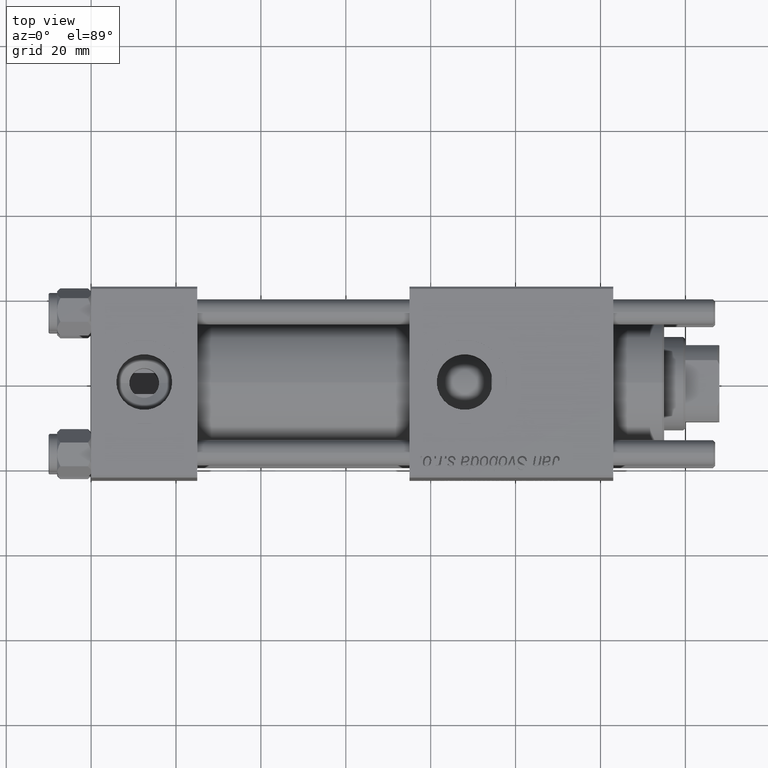
[diagram: clean part render]
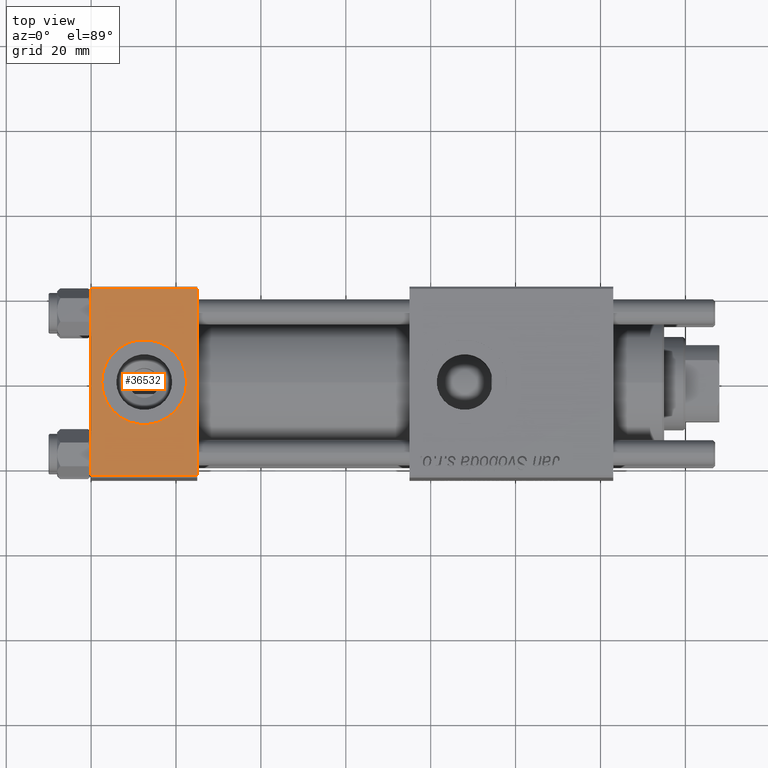
[diagram: same view with one face highlighted and labeled with its STEP entity id]
A machine part, top view. The second image highlights one B-rep face of the part: STEP entity #36532.
In plain terms, the highlighted planar face has unit normal (0, 0, -1).
Its self-contained STEP definition (entity closure, byte-faithful):
#4229 = DIRECTION ( 'NONE',  ( 0.000000000000000000, 0.000000000000000000, 1.000000000000000000 ) ) ;
#5054 = VECTOR ( 'NONE', #22146, 1000.000000000000000 ) ;
#5140 = ORIENTED_EDGE ( 'NONE', *, *, #28665, .F. ) ;
#5451 = LINE ( 'NONE', #23514, #12427 ) ;
#5991 = PLANE ( 'NONE',  #53680 ) ;
#6173 = ORIENTED_EDGE ( 'NONE', *, *, #18771, .T. ) ;
#9121 = CARTESIAN_POINT ( 'NONE',  ( 0.000000000000000000, 22.50000000000000000, 22.50000000000000355 ) ) ;
#9290 = CARTESIAN_POINT ( 'NONE',  ( 22.50000000000000000, -1.734723475976807094E-15, 22.50000000000000000 ) ) ;
#10157 = FACE_BOUND ( 'NONE', #40293, .T. ) ;
#11382 = VERTEX_POINT ( 'NONE', #20085 ) ;
#12427 = VECTOR ( 'NONE', #41536, 1000.000000000000000 ) ;
#12823 = CARTESIAN_POINT ( 'NONE',  ( 12.50000000000000000, -1.734723475976807094E-15, 22.50000000000000000 ) ) ;
#15163 = DIRECTION ( 'NONE',  ( 0.000000000000000000, 7.709882115452476934E-17, -1.000000000000000000 ) ) ;
#15184 = VERTEX_POINT ( 'NONE', #24483 ) ;
#15853 = CIRCLE ( 'NONE', #48930, 9.999999999999998224 ) ;
#16820 = CARTESIAN_POINT ( 'NONE',  ( 0.000000000000000000, 21.99999999999999289, 22.50000000000000355 ) ) ;
#17316 = ORIENTED_EDGE ( 'NONE', *, *, #29603, .F. ) ;
#17850 = DIRECTION ( 'NONE',  ( 1.000000000000000000, 0.000000000000000000, 0.000000000000000000 ) ) ;
#18026 = LINE ( 'NONE', #27198, #29903 ) ;
#18771 = EDGE_CURVE ( 'NONE', #33914, #54151, #49948, .T. ) ;
#19322 = CARTESIAN_POINT ( 'NONE',  ( 25.00000000000000000, 22.50000000000000000, 22.50000000000000355 ) ) ;
#20085 = CARTESIAN_POINT ( 'NONE',  ( 25.00000000000000000, -21.99999999999997868, 22.50000000000000000 ) ) ;
#21252 = DIRECTION ( 'NONE',  ( 0.000000000000000000, 0.000000000000000000, 1.000000000000000000 ) ) ;
#22146 = DIRECTION ( 'NONE',  ( 0.000000000000000000, -1.000000000000000000, -7.709882115452476934E-17 ) ) ;
#22644 = ORIENTED_EDGE ( 'NONE', *, *, #31216, .F. ) ;
#22921 = ORIENTED_EDGE ( 'NONE', *, *, #50806, .T. ) ;
#23514 = CARTESIAN_POINT ( 'NONE',  ( 0.000000000000000000, 21.99999999999999289, 22.50000000000000355 ) ) ;
#24483 = CARTESIAN_POINT ( 'NONE',  ( 25.00000000000000000, 21.99999999999999289, 22.50000000000000355 ) ) ;
#24522 = VERTEX_POINT ( 'NONE', #43708 ) ;
#26192 = VECTOR ( 'NONE', #34787, 1000.000000000000000 ) ;
#26268 = CARTESIAN_POINT ( 'NONE',  ( 12.50000000000000000, -1.734723475976807094E-15, 22.50000000000000000 ) ) ;
#26778 = VERTEX_POINT ( 'NONE', #9290 ) ;
#27198 = CARTESIAN_POINT ( 'NONE',  ( 25.00000000000000000, -21.99999999999999289, 22.50000000000000000 ) ) ;
#27451 = EDGE_CURVE ( 'NONE', #54151, #11382, #18026, .T. ) ;
#28665 = EDGE_CURVE ( 'NONE', #24522, #26778, #32741, .T. ) ;
#29603 = EDGE_CURVE ( 'NONE', #15184, #11382, #57295, .T. ) ;
#29903 = VECTOR ( 'NONE', #53842, 1000.000000000000000 ) ;
#30404 = DIRECTION ( 'NONE',  ( 1.000000000000000000, 0.000000000000000000, 0.000000000000000000 ) ) ;
#31216 = EDGE_CURVE ( 'NONE', #26778, #24522, #15853, .T. ) ;
#32741 = CIRCLE ( 'NONE', #40307, 9.999999999999998224 ) ;
#33914 = VERTEX_POINT ( 'NONE', #16820 ) ;
#34760 = EDGE_LOOP ( 'NONE', ( #6173, #36886, #17316, #22921 ) ) ;
#34787 = DIRECTION ( 'NONE',  ( 0.000000000000000000, -1.000000000000000000, -7.709882115452476934E-17 ) ) ;
#36074 = CARTESIAN_POINT ( 'NONE',  ( 0.000000000000000000, -21.99999999999997868, 22.50000000000000000 ) ) ;
#36532 = ADVANCED_FACE ( 'NONE', ( #10157, #41222 ), #5991, .F. ) ;
#36886 = ORIENTED_EDGE ( 'NONE', *, *, #27451, .T. ) ;
#40293 = EDGE_LOOP ( 'NONE', ( #22644, #5140 ) ) ;
#40307 = AXIS2_PLACEMENT_3D ( 'NONE', #26268, #21252, #30404 ) ;
#41222 = FACE_OUTER_BOUND ( 'NONE', #34760, .T. ) ;
#41536 = DIRECTION ( 'NONE',  ( -1.000000000000000000, 0.000000000000000000, 0.000000000000000000 ) ) ;
#43708 = CARTESIAN_POINT ( 'NONE',  ( 2.500000000000003997, -5.100766768294543310E-16, 22.50000000000000000 ) ) ;
#48930 = AXIS2_PLACEMENT_3D ( 'NONE', #12823, #4229, #17850 ) ;
#49948 = LINE ( 'NONE', #9121, #5054 ) ;
#50806 = EDGE_CURVE ( 'NONE', #15184, #33914, #5451, .T. ) ;
#53680 = AXIS2_PLACEMENT_3D ( 'NONE', #19322, #15163, #54848 ) ;
#53842 = DIRECTION ( 'NONE',  ( 1.000000000000000000, 0.000000000000000000, 0.000000000000000000 ) ) ;
#54151 = VERTEX_POINT ( 'NONE', #36074 ) ;
#54848 = DIRECTION ( 'NONE',  ( 0.000000000000000000, 1.000000000000000000, 7.709882115452476934E-17 ) ) ;
#57295 = LINE ( 'NONE', #58193, #26192 ) ;
#58193 = CARTESIAN_POINT ( 'NONE',  ( 25.00000000000000000, 22.50000000000000000, 22.50000000000000355 ) ) ;